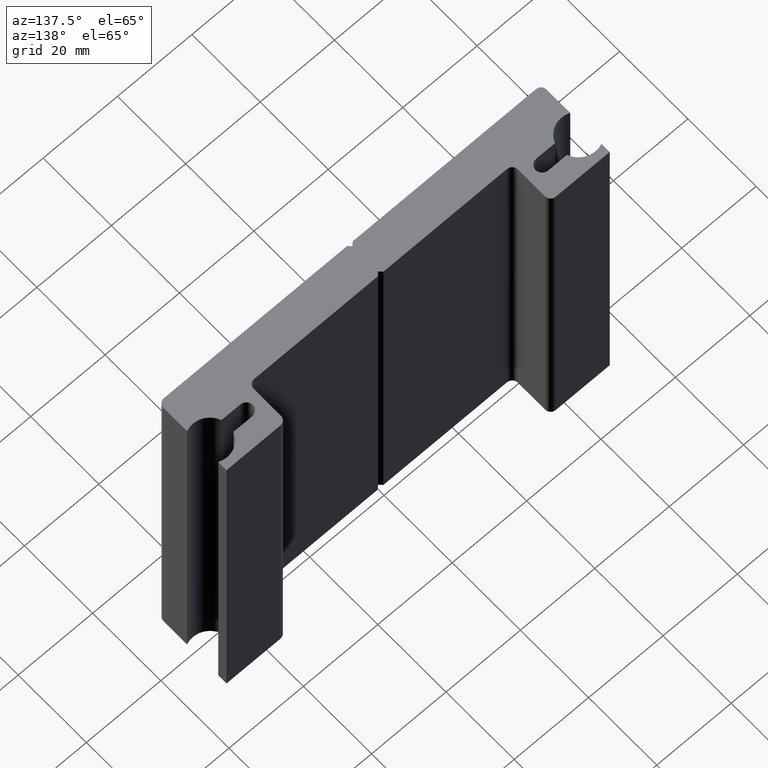
[diagram: clean part render]
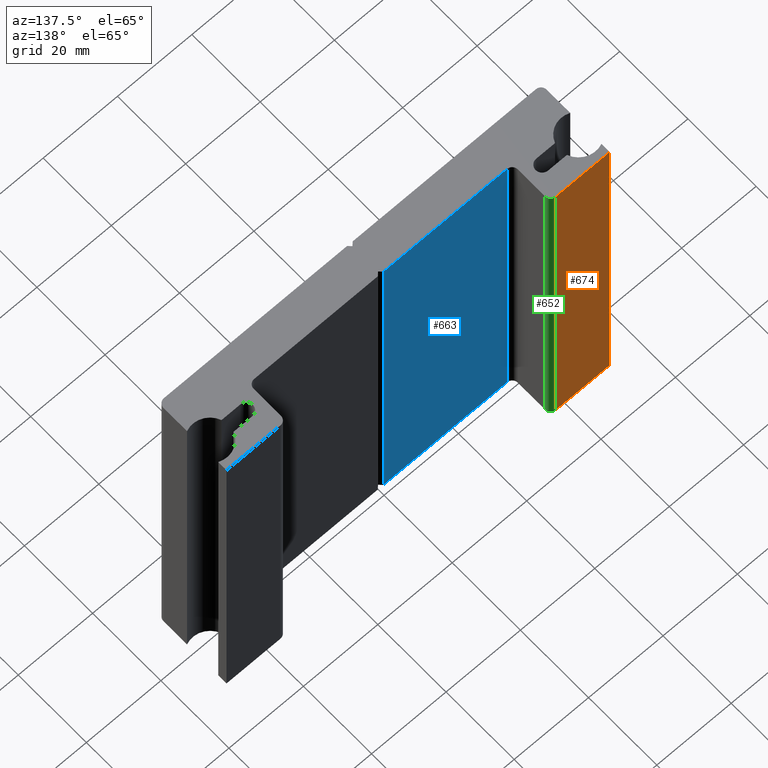
[diagram: same view with three faces highlighted in distinct colors, each labeled with its STEP entity id]
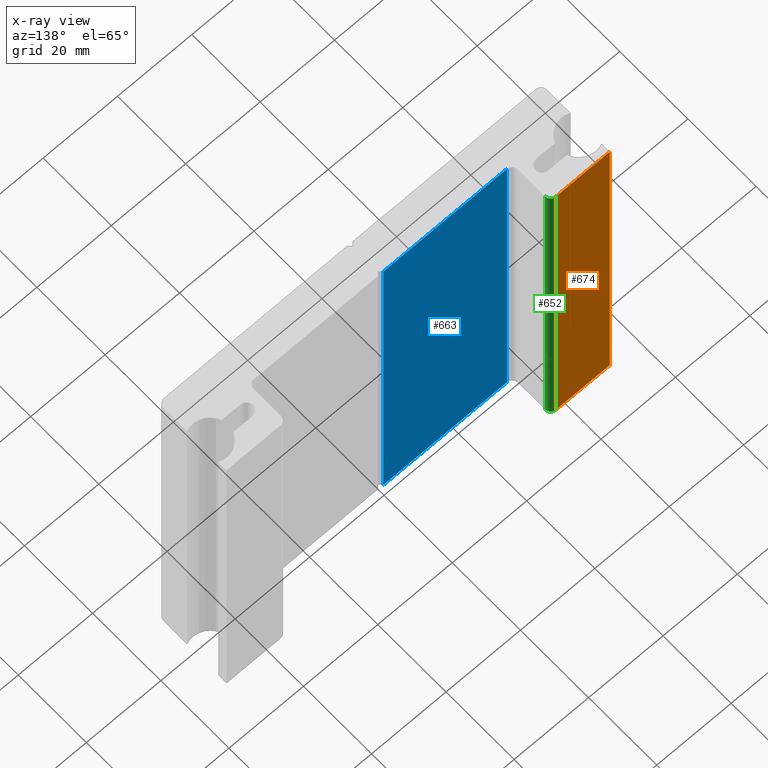
[diagram: x-ray of the same camera — body ghosted, the three highlighted faces saturated]
A machine part, auxiliary view with three faces highlighted in distinct colors.
The next image is the same camera in x-ray (body ghosted, the three faces saturated) — at least one of them is partly hidden behind the body in this view.
Their STEP definitions:

[orange] entity #674 — the highlighted planar face has unit normal (0, 1, 0).
#88=FACE_OUTER_BOUND('',#122,.T.);
#122=EDGE_LOOP('',(#615,#616,#617,#618));
#144=LINE('',#1030,#216);
#159=LINE('',#1071,#231);
#176=LINE('',#1115,#248);
#194=LINE('',#1152,#266);
#216=VECTOR('',#835,10.);
#231=VECTOR('',#864,10.);
#248=VECTOR('',#897,10.);
#266=VECTOR('',#953,10.);
#291=VERTEX_POINT('',#1027);
#292=VERTEX_POINT('',#1029);
#311=VERTEX_POINT('',#1070);
#330=VERTEX_POINT('',#1114);
#364=EDGE_CURVE('',#291,#292,#144,.T.);
#385=EDGE_CURVE('',#292,#311,#159,.T.);
#408=EDGE_CURVE('',#311,#330,#176,.T.);
#426=EDGE_CURVE('',#291,#330,#194,.T.);
#615=ORIENTED_EDGE('',*,*,#385,.F.);
#616=ORIENTED_EDGE('',*,*,#364,.F.);
#617=ORIENTED_EDGE('',*,*,#426,.T.);
#618=ORIENTED_EDGE('',*,*,#408,.F.);
#640=PLANE('',#762);
#674=ADVANCED_FACE('',(#88),#640,.T.);
#762=AXIS2_PLACEMENT_3D('',#1153,#954,#955);
#835=DIRECTION('',(1.,0.,0.));
#864=DIRECTION('',(0.,0.,1.));
#897=DIRECTION('',(-1.,0.,0.));
#953=DIRECTION('',(0.,0.,1.));
#954=DIRECTION('center_axis',(0.,1.,0.));
#955=DIRECTION('ref_axis',(-1.,0.,0.));
#1027=CARTESIAN_POINT('',(-51.5,10.,0.));
#1029=CARTESIAN_POINT('',(-37.,10.,0.));
#1030=CARTESIAN_POINT('',(-51.5,10.,0.));
#1070=CARTESIAN_POINT('',(-37.,10.,100.));
#1071=CARTESIAN_POINT('',(-37.,10.,50.));
#1114=CARTESIAN_POINT('',(-51.5,10.,100.));
#1115=CARTESIAN_POINT('',(-51.5,10.,100.));
#1152=CARTESIAN_POINT('',(-51.5,10.,0.));
#1153=CARTESIAN_POINT('Origin',(51.5,10.,0.));

[blue] entity #663 — the highlighted planar face has unit normal (0, -1, 0).
#77=FACE_OUTER_BOUND('',#111,.T.);
#111=EDGE_LOOP('',(#571,#572,#573,#574));
#146=LINE('',#1038,#218);
#175=LINE('',#1112,#247);
#187=LINE('',#1134,#259);
#188=LINE('',#1136,#260);
#218=VECTOR('',#841,10.);
#247=VECTOR('',#894,10.);
#259=VECTOR('',#924,10.);
#260=VECTOR('',#927,10.);
#295=VERTEX_POINT('',#1035);
#296=VERTEX_POINT('',#1037);
#328=VERTEX_POINT('',#1109);
#329=VERTEX_POINT('',#1111);
#368=EDGE_CURVE('',#295,#296,#146,.T.);
#406=EDGE_CURVE('',#328,#329,#175,.T.);
#419=EDGE_CURVE('',#329,#295,#187,.T.);
#420=EDGE_CURVE('',#328,#296,#188,.T.);
#571=ORIENTED_EDGE('',*,*,#419,.F.);
#572=ORIENTED_EDGE('',*,*,#406,.F.);
#573=ORIENTED_EDGE('',*,*,#420,.T.);
#574=ORIENTED_EDGE('',*,*,#368,.F.);
#629=PLANE('',#751);
#663=ADVANCED_FACE('',(#77),#629,.F.);
#751=AXIS2_PLACEMENT_3D('',#1135,#925,#926);
#841=DIRECTION('',(1.,1.2314093406934E-16,0.));
#894=DIRECTION('',(-1.,-1.2314093406934E-16,0.));
#924=DIRECTION('',(0.,0.,-1.));
#925=DIRECTION('center_axis',(1.2314093406934E-16,-1.,0.));
#926=DIRECTION('ref_axis',(-1.,-1.2314093406934E-16,0.));
#927=DIRECTION('',(0.,0.,-1.));
#1035=CARTESIAN_POINT('',(-34.,-1.,0.));
#1037=CARTESIAN_POINT('',(-0.749999999999997,-1.,0.));
#1038=CARTESIAN_POINT('',(17.75,-0.999999999999998,0.));
#1109=CARTESIAN_POINT('',(-0.749999999999997,-1.,100.));
#1111=CARTESIAN_POINT('',(-34.,-1.,100.));
#1112=CARTESIAN_POINT('',(17.75,-0.999999999999998,100.));
#1134=CARTESIAN_POINT('',(-34.,-1.,100.));
#1135=CARTESIAN_POINT('Origin',(35.5,-0.999999999999996,100.));
#1136=CARTESIAN_POINT('',(-0.750000000000001,-1.,100.));

[green] entity #652 — the highlighted cylindrical surface (edge-blend (fillet) strip) has radius 1.5 mm, axis along (0, 0, -1).
#31=CIRCLE('',#728,1.5);
#37=CIRCLE('',#735,1.5);
#49=CYLINDRICAL_SURFACE('',#734,1.5);
#66=FACE_OUTER_BOUND('',#100,.T.);
#100=EDGE_LOOP('',(#499,#500,#501,#502));
#159=LINE('',#1071,#231);
#160=LINE('',#1074,#232);
#231=VECTOR('',#864,10.);
#232=VECTOR('',#867,10.);
#292=VERTEX_POINT('',#1029);
#293=VERTEX_POINT('',#1031);
#311=VERTEX_POINT('',#1070);
#312=VERTEX_POINT('',#1072);
#365=EDGE_CURVE('',#293,#292,#31,.T.);
#385=EDGE_CURVE('',#292,#311,#159,.T.);
#386=EDGE_CURVE('',#311,#312,#37,.T.);
#387=EDGE_CURVE('',#312,#293,#160,.T.);
#499=ORIENTED_EDGE('',*,*,#365,.T.);
#500=ORIENTED_EDGE('',*,*,#385,.T.);
#501=ORIENTED_EDGE('',*,*,#386,.T.);
#502=ORIENTED_EDGE('',*,*,#387,.T.);
#652=ADVANCED_FACE('',(#66),#49,.T.);
#728=AXIS2_PLACEMENT_3D('',#1032,#836,#837);
#734=AXIS2_PLACEMENT_3D('',#1069,#862,#863);
#735=AXIS2_PLACEMENT_3D('',#1073,#865,#866);
#836=DIRECTION('center_axis',(0.,0.,1.));
#837=DIRECTION('ref_axis',(0.707106781186549,0.707106781186546,0.));
#862=DIRECTION('center_axis',(0.,0.,-1.));
#863=DIRECTION('ref_axis',(0.707106781186549,0.707106781186546,0.));
#864=DIRECTION('',(0.,0.,1.));
#865=DIRECTION('center_axis',(0.,0.,-1.));
#866=DIRECTION('ref_axis',(0.707106781186549,0.707106781186546,0.));
#867=DIRECTION('',(0.,0.,-1.));
#1029=CARTESIAN_POINT('',(-37.,10.,0.));
#1031=CARTESIAN_POINT('',(-35.5,8.5,0.));
#1032=CARTESIAN_POINT('Origin',(-37.,8.5,0.));
#1069=CARTESIAN_POINT('Origin',(-37.,8.5,50.));
#1070=CARTESIAN_POINT('',(-37.,10.,100.));
#1071=CARTESIAN_POINT('',(-37.,10.,50.));
#1072=CARTESIAN_POINT('',(-35.5,8.5,100.));
#1073=CARTESIAN_POINT('Origin',(-37.,8.5,100.));
#1074=CARTESIAN_POINT('',(-35.5,8.5,50.));